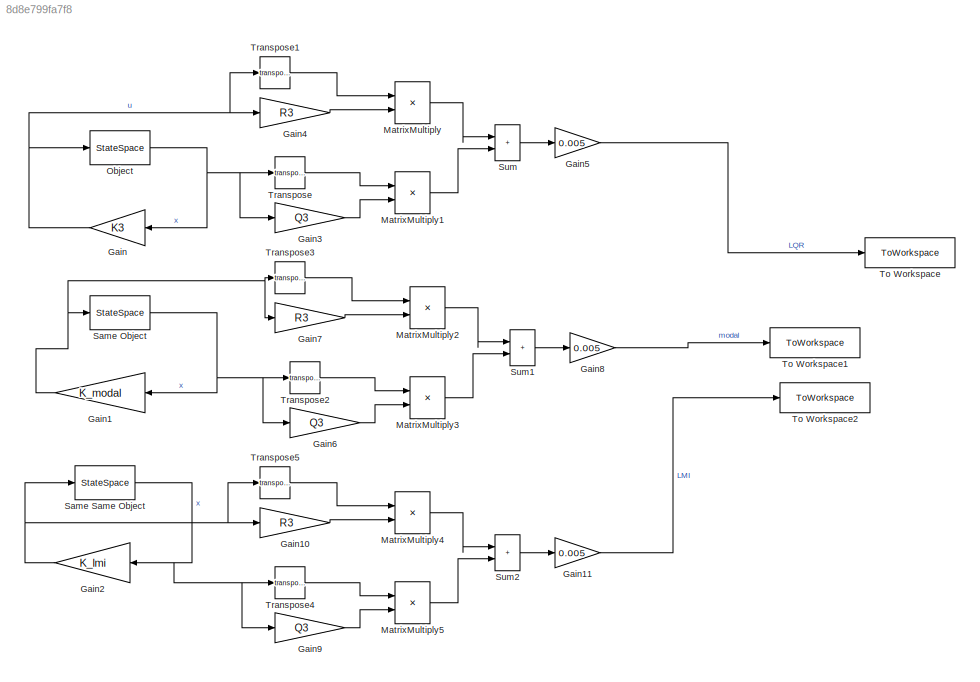
MODEL slx_8d8e799fa7f8
KIND model
CONFIG AbsTol = auto
CONFIG EnableMultiTasking = off
CONFIG FixedStep = 0.005
CONFIG MaxStep = auto
CONFIG MinStep = auto
CONFIG RelTol = 1e-3
CONFIG SampleTimeConstraint = Unconstrained
CONFIG SolverName = FixedStepAuto
CONFIG StartTime = 0.0
CONFIG StopTime = 20
BLOCK [Gain] Gain
  Gain = K3
  Multiplication = Matrix(K*u) (u vector)
  NameLocation = top
BLOCK [Gain] Gain1
  Gain = K_modal
  Multiplication = Matrix(K*u) (u vector)
  NameLocation = top
BLOCK [Gain] Gain10
  Gain = R3
  Multiplication = Matrix(K*u) (u vector)
BLOCK [Gain] Gain11
  Gain = 0.005
BLOCK [Gain] Gain2
  Gain = K_lmi
  Multiplication = Matrix(K*u) (u vector)
  NameLocation = top
BLOCK [Gain] Gain3
  Gain = Q3
  Multiplication = Matrix(K*u) (u vector)
BLOCK [Gain] Gain4
  Gain = R3
  Multiplication = Matrix(K*u) (u vector)
BLOCK [Gain] Gain5
  Gain = 0.005
BLOCK [Gain] Gain6
  Gain = Q3
  Multiplication = Matrix(K*u) (u vector)
BLOCK [Gain] Gain7
  Gain = R3
  Multiplication = Matrix(K*u) (u vector)
BLOCK [Gain] Gain8
  Gain = 0.005
BLOCK [Gain] Gain9
  Gain = Q3
  Multiplication = Matrix(K*u) (u vector)
BLOCK [Product] MatrixMultiply
  Multiplication = Matrix(*)
  Ports = [2, 1]
BLOCK [Product] MatrixMultiply1
  Multiplication = Matrix(*)
  Ports = [2, 1]
BLOCK [Product] MatrixMultiply2
  Multiplication = Matrix(*)
  Ports = [2, 1]
BLOCK [Product] MatrixMultiply3
  Multiplication = Matrix(*)
  Ports = [2, 1]
BLOCK [Product] MatrixMultiply4
  Multiplication = Matrix(*)
  Ports = [2, 1]
BLOCK [Product] MatrixMultiply5
  Multiplication = Matrix(*)
  Ports = [2, 1]
BLOCK [StateSpace] Object
  A = A
  B = B
  C = [1 0 0 0; 0 1 0 0; 0 0 1 0; 0 0 0 1]
  D = [0 0; 0 0; 0 0; 0 0]
  InitialCondition = x0
  Ports = [1, 1]
BLOCK [StateSpace] Same Object
  A = A
  B = B
  C = [1 0 0 0; 0 1 0 0; 0 0 1 0; 0 0 0 1]
  D = [0 0; 0 0; 0 0; 0 0]
  InitialCondition = x0
  Ports = [1, 1]
BLOCK [StateSpace] Same Same Object
  A = A
  B = B
  C = [1 0 0 0; 0 1 0 0; 0 0 1 0; 0 0 0 1]
  D = [0 0; 0 0; 0 0; 0 0]
  InitialCondition = x0
  Ports = [1, 1]
BLOCK [Sum] Sum
  IconShape = rectangular
  Inputs = |++
  Ports = [2, 1]
BLOCK [Sum] Sum1
  IconShape = rectangular
  Inputs = |++
  Ports = [2, 1]
BLOCK [Sum] Sum2
  IconShape = rectangular
  Inputs = |++
  Ports = [2, 1]
BLOCK [ToWorkspace] To Workspace
  FixptAsFi = on
  MaxDataPoints = inf
  Ports = [1]
  SampleTime = -1
  SaveFormat = Structure With Time
  VariableName = lqr_sum
BLOCK [ToWorkspace] To Workspace1
  FixptAsFi = on
  MaxDataPoints = inf
  Ports = [1]
  SampleTime = -1
  SaveFormat = Structure With Time
  VariableName = modal_sum
BLOCK [ToWorkspace] To Workspace2
  FixptAsFi = on
  MaxDataPoints = inf
  Ports = [1]
  SampleTime = -1
  SaveFormat = Structure With Time
  VariableName = lmi_sum
BLOCK [Math] Transpose
  Operator = transpose
  Ports = [1, 1]
BLOCK [Math] Transpose1
  Operator = transpose
  Ports = [1, 1]
BLOCK [Math] Transpose2
  Operator = transpose
  Ports = [1, 1]
BLOCK [Math] Transpose3
  Operator = transpose
  Ports = [1, 1]
BLOCK [Math] Transpose4
  Operator = transpose
  Ports = [1, 1]
BLOCK [Math] Transpose5
  Operator = transpose
  Ports = [1, 1]
LINE Gain10:1 -> MatrixMultiply4:2
LINE Gain11:1 -> To Workspace2:1
NET Gain1:1 -> Gain7:1, Same Object:1, Transpose3:1
NET Gain2:1 -> Gain10:1, Same Same Object:1, Transpose5:1
LINE Gain3:1 -> MatrixMultiply1:2
LINE Gain4:1 -> MatrixMultiply:2
LINE Gain5:1 -> To Workspace:1
LINE Gain6:1 -> MatrixMultiply3:2
LINE Gain7:1 -> MatrixMultiply2:2
LINE Gain8:1 -> To Workspace1:1
LINE Gain9:1 -> MatrixMultiply5:2
NET Gain:1 -> Gain4:1, Object:1, Transpose1:1
LINE MatrixMultiply1:1 -> Sum:2
LINE MatrixMultiply2:1 -> Sum1:1
LINE MatrixMultiply3:1 -> Sum1:2
LINE MatrixMultiply4:1 -> Sum2:1
LINE MatrixMultiply5:1 -> Sum2:2
LINE MatrixMultiply:1 -> Sum:1
NET Object:1 -> Gain3:1, Gain:1, Transpose:1
NET Same Object:1 -> Gain1:1, Gain6:1, Transpose2:1
NET Same Same Object:1 -> Gain2:1, Gain9:1, Transpose4:1
LINE Sum1:1 -> Gain8:1
LINE Sum2:1 -> Gain11:1
LINE Sum:1 -> Gain5:1
LINE Transpose1:1 -> MatrixMultiply:1
LINE Transpose2:1 -> MatrixMultiply3:1
LINE Transpose3:1 -> MatrixMultiply2:1
LINE Transpose4:1 -> MatrixMultiply5:1
LINE Transpose5:1 -> MatrixMultiply4:1
LINE Transpose:1 -> MatrixMultiply1:1
note: NET lines group one-source signal fan-out (src -> all destinations, sorted); 1:1 wires keep LINE
